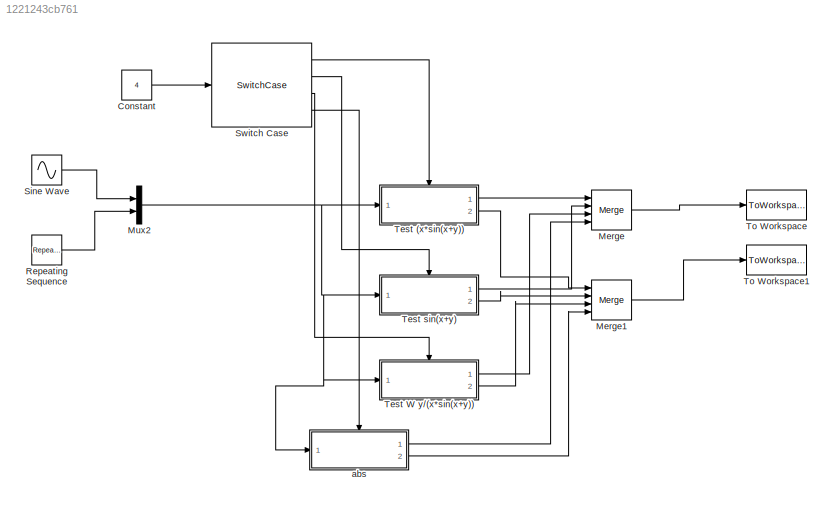
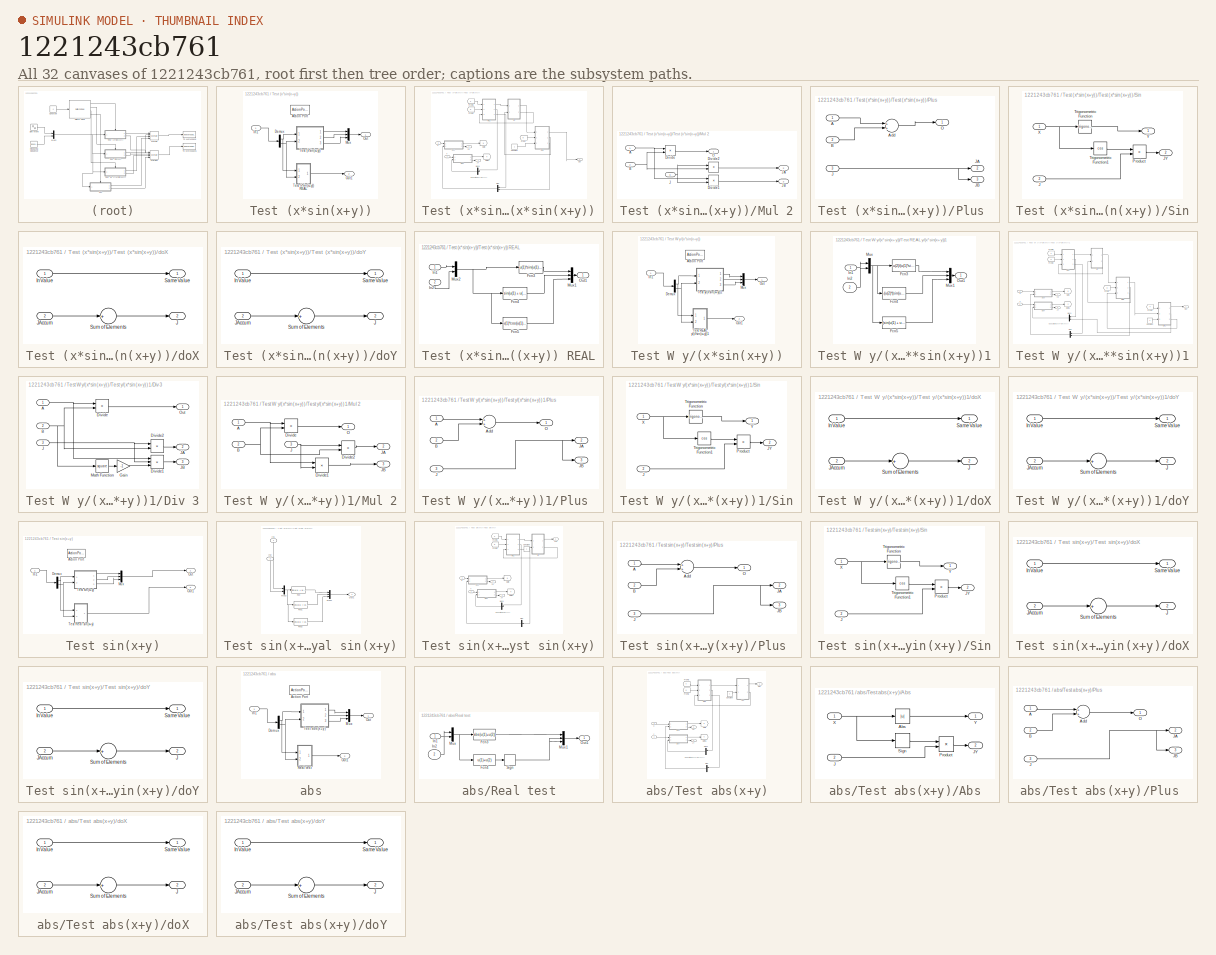
[diagram: thumbnail index - all 32 canvases of the model, root first then tree order]
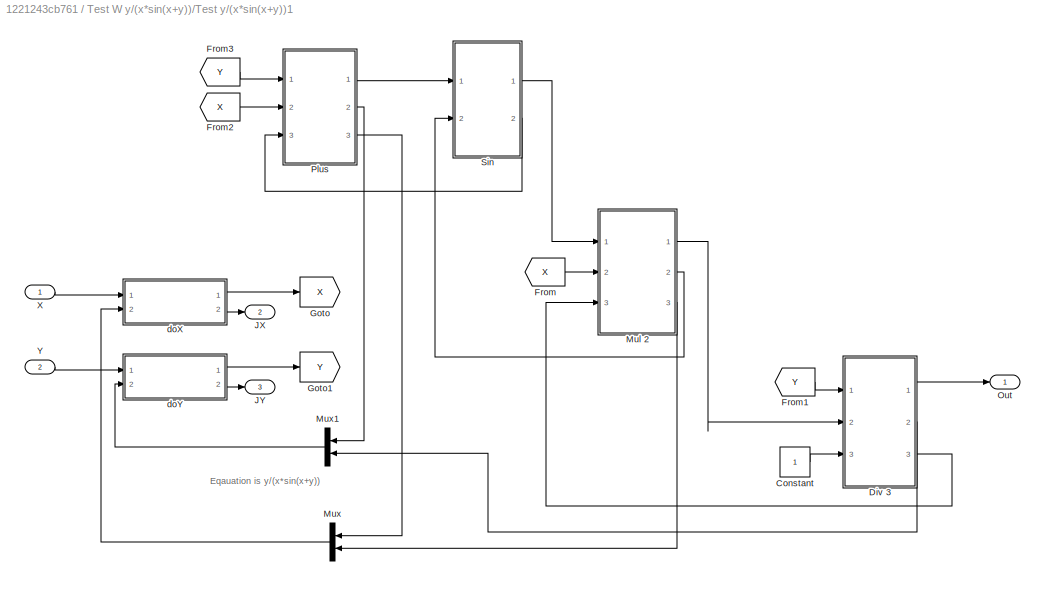
MODEL slx_1221243cb761
KIND model
CONFIG AbsTol = auto
CONFIG FixedStep = 0.01
CONFIG MaxStep = auto
CONFIG MinStep = auto
CONFIG RelTol = 1e-3
CONFIG SampleTimeConstraint = Unconstrained
CONFIG Solver = FixedStepDiscrete
CONFIG SolverMode = Auto
CONFIG SolverName = FixedStepDiscrete
CONFIG StartTime = 0.0
CONFIG StopTime = 10.0
BLOCK [Constant] Constant
  Value = 4
BLOCK [Merge] Merge
  Inputs = 4
  Ports = [4, 1]
BLOCK [Merge] Merge1
  Inputs = 4
  Ports = [4, 1]
BLOCK [Mux] Mux2
  DisplayOption = bar
  Inputs = 2
  Ports = [2, 1]
BLOCK [Reference] Repeating Sequence  REF=simulink/Sources/Repeating
Sequence
  Ports = [0, 1]
  SourceBlock = simulink/Sources/Repeating\nSequence
  SourceType = Repeating table
BLOCK [Sin] Sine Wave
  Ports = [0, 1]
  SampleTime = 0
BLOCK [SwitchCase] Switch Case
  CaseConditions = {1,2,3,4}
  Ports = [1, 4]
  ShowDefaultCase = off
BLOCK [SubSystem] Test (x*sin(x+y))
  Ports = [1, 2, 0, 0, 0, 0, 0, 1]
  RequestExecContextInheritance = off
  TreatAsAtomicUnit = on
  Variant = off
BLOCK [ActionPort] Test (x*sin(x+y))/Action Port
  ActionType = case
BLOCK [Demux] Test (x*sin(x+y))/Demux
  DisplayOption = bar
  Outputs = 2
  Ports = [1, 2]
BLOCK [Inport] Test (x*sin(x+y))/In1
  IconDisplay = Port number
BLOCK [Mux] Test (x*sin(x+y))/Mux
  DisplayOption = bar
  Inputs = 3
  Ports = [3, 1]
BLOCK [Outport] Test (x*sin(x+y))/Out
  IconDisplay = Port number
BLOCK [Outport] Test (x*sin(x+y))/Out1
  IconDisplay = Port number
  Port = 2
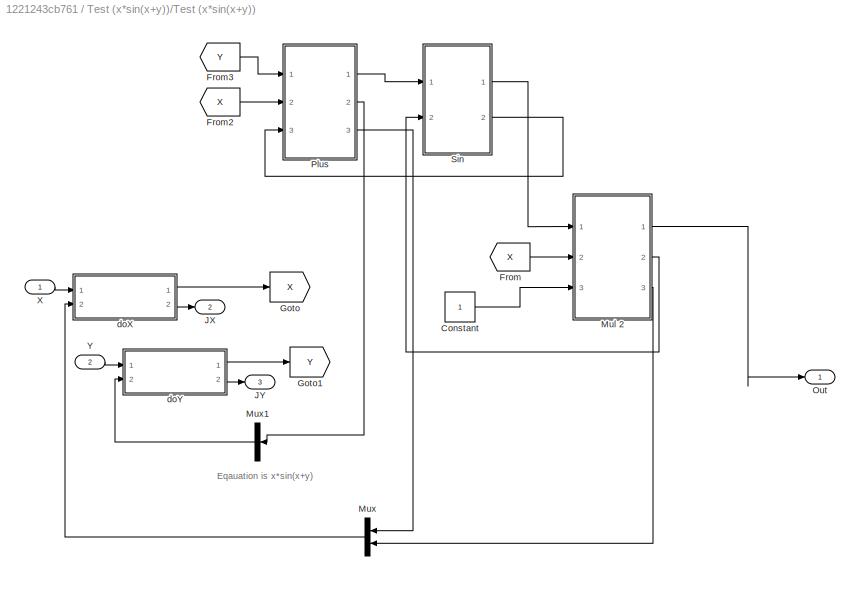
BLOCK [SubSystem] Test (x*sin(x+y))/Test (x*sin(x+y))
  Ports = [2, 3]
  RequestExecContextInheritance = off
  Variant = off
BLOCK [SubSystem] Test (x*sin(x+y))/Test (x*sin(x+y)) REAL
  Ports = [2, 1]
  RequestExecContextInheritance = off
  Variant = off
BLOCK [Fcn] Test (x*sin(x+y))/Test (x*sin(x+y)) REAL/Fcn3
  Expr = u(1)*sin(u(1) + u(2))
BLOCK [Fcn] Test (x*sin(x+y))/Test (x*sin(x+y)) REAL/Fcn4
  Expr = sin(u(1) + u(2)) + u(1)*cos(u(1) + u(2))
BLOCK [Fcn] Test (x*sin(x+y))/Test (x*sin(x+y)) REAL/Fcn5
  Expr = u(1)*cos(u(1) + u(2))
BLOCK [Inport] Test (x*sin(x+y))/Test (x*sin(x+y)) REAL/In1
  IconDisplay = Port number
BLOCK [Inport] Test (x*sin(x+y))/Test (x*sin(x+y)) REAL/In2
  IconDisplay = Port number
  Port = 2
BLOCK [Mux] Test (x*sin(x+y))/Test (x*sin(x+y)) REAL/Mux1
  DisplayOption = bar
  Inputs = 3
  Ports = [3, 1]
BLOCK [Mux] Test (x*sin(x+y))/Test (x*sin(x+y)) REAL/Mux2
  DisplayOption = bar
  Inputs = 2
  Ports = [2, 1]
BLOCK [Outport] Test (x*sin(x+y))/Test (x*sin(x+y)) REAL/Out1
  IconDisplay = Port number
BLOCK [Constant] Test (x*sin(x+y))/Test (x*sin(x+y))/Constant
BLOCK [From] Test (x*sin(x+y))/Test (x*sin(x+y))/From
  GotoTag = X
BLOCK [From] Test (x*sin(x+y))/Test (x*sin(x+y))/From2
  GotoTag = X
BLOCK [From] Test (x*sin(x+y))/Test (x*sin(x+y))/From3
  GotoTag = Y
BLOCK [Goto] Test (x*sin(x+y))/Test (x*sin(x+y))/Goto
  GotoTag = X
BLOCK [Goto] Test (x*sin(x+y))/Test (x*sin(x+y))/Goto1
  GotoTag = Y
BLOCK [Outport] Test (x*sin(x+y))/Test (x*sin(x+y))/JX
  IconDisplay = Port number
  Port = 2
BLOCK [Outport] Test (x*sin(x+y))/Test (x*sin(x+y))/JY
  IconDisplay = Port number
  Port = 3
BLOCK [SubSystem] Test (x*sin(x+y))/Test (x*sin(x+y))/Mul 2
  Ports = [3, 3]
  RequestExecContextInheritance = off
  Variant = off
BLOCK [Inport] Test (x*sin(x+y))/Test (x*sin(x+y))/Mul 2/A
  IconDisplay = Port number
BLOCK [Inport] Test (x*sin(x+y))/Test (x*sin(x+y))/Mul 2/B
  IconDisplay = Port number
  Port = 2
BLOCK [Product] Test (x*sin(x+y))/Test (x*sin(x+y))/Mul 2/Divide
  InputSameDT = off
  Inputs = **
  OutDataTypeStr = Inherit: Inherit via internal rule
  Ports = [2, 1]
  RndMeth = Floor
  SaturateOnIntegerOverflow = off
BLOCK [Product] Test (x*sin(x+y))/Test (x*sin(x+y))/Mul 2/Divide1
  InputSameDT = off
  Inputs = **
  OutDataTypeStr = Inherit: Inherit via internal rule
  Ports = [2, 1]
  RndMeth = Floor
  SaturateOnIntegerOverflow = off
BLOCK [Product] Test (x*sin(x+y))/Test (x*sin(x+y))/Mul 2/Divide2
  InputSameDT = off
  Inputs = **
  OutDataTypeStr = Inherit: Inherit via internal rule
  Ports = [2, 1]
  RndMeth = Floor
  SaturateOnIntegerOverflow = off
BLOCK [Inport] Test (x*sin(x+y))/Test (x*sin(x+y))/Mul 2/J
  IconDisplay = Port number
  Port = 3
BLOCK [Outport] Test (x*sin(x+y))/Test (x*sin(x+y))/Mul 2/JA
  IconDisplay = Port number
  Port = 2
BLOCK [Outport] Test (x*sin(x+y))/Test (x*sin(x+y))/Mul 2/JB
  IconDisplay = Port number
  Port = 3
BLOCK [Outport] Test (x*sin(x+y))/Test (x*sin(x+y))/Mul 2/O
  IconDisplay = Port number
BLOCK [Mux] Test (x*sin(x+y))/Test (x*sin(x+y))/Mux
  DisplayOption = bar
  Inputs = 2
  Ports = [2, 1]
BLOCK [Mux] Test (x*sin(x+y))/Test (x*sin(x+y))/Mux1
  DisplayOption = bar
  Inputs = 1
  Ports = [1, 1]
BLOCK [Outport] Test (x*sin(x+y))/Test (x*sin(x+y))/Out
  IconDisplay = Port number
BLOCK [SubSystem] Test (x*sin(x+y))/Test (x*sin(x+y))/Plus 
  Ports = [3, 3]
  RequestExecContextInheritance = off
  Variant = off
BLOCK [Inport] Test (x*sin(x+y))/Test (x*sin(x+y))/Plus /A
  IconDisplay = Port number
BLOCK [Sum] Test (x*sin(x+y))/Test (x*sin(x+y))/Plus /Add
  InputSameDT = off
  OutDataTypeStr = Inherit: Inherit via internal rule
  Ports = [2, 1]
  SaturateOnIntegerOverflow = off
BLOCK [Inport] Test (x*sin(x+y))/Test (x*sin(x+y))/Plus /B
  IconDisplay = Port number
  Port = 2
BLOCK [Inport] Test (x*sin(x+y))/Test (x*sin(x+y))/Plus /J
  IconDisplay = Port number
  Port = 3
BLOCK [Outport] Test (x*sin(x+y))/Test (x*sin(x+y))/Plus /JA
  IconDisplay = Port number
  Port = 2
BLOCK [Outport] Test (x*sin(x+y))/Test (x*sin(x+y))/Plus /JB
  IconDisplay = Port number
  Port = 3
BLOCK [Outport] Test (x*sin(x+y))/Test (x*sin(x+y))/Plus /O
  IconDisplay = Port number
BLOCK [SubSystem] Test (x*sin(x+y))/Test (x*sin(x+y))/Sin
  Ports = [2, 2]
  RequestExecContextInheritance = off
  Variant = off
BLOCK [Inport] Test (x*sin(x+y))/Test (x*sin(x+y))/Sin/J
  IconDisplay = Port number
  Port = 2
BLOCK [Outport] Test (x*sin(x+y))/Test (x*sin(x+y))/Sin/JY
  IconDisplay = Port number
  Port = 2
BLOCK [Product] Test (x*sin(x+y))/Test (x*sin(x+y))/Sin/Product
  InputSameDT = off
  OutDataTypeStr = Inherit: Inherit via internal rule
  Ports = [2, 1]
  RndMeth = Floor
  SaturateOnIntegerOverflow = off
BLOCK [Trigonometry] Test (x*sin(x+y))/Test (x*sin(x+y))/Sin/Trigonometric Function
  Ports = [1, 1]
BLOCK [Trigonometry] Test (x*sin(x+y))/Test (x*sin(x+y))/Sin/Trigonometric Function1
  Operator = cos
  Ports = [1, 1]
BLOCK [Inport] Test (x*sin(x+y))/Test (x*sin(x+y))/Sin/X
  IconDisplay = Port number
BLOCK [Outport] Test (x*sin(x+y))/Test (x*sin(x+y))/Sin/Y
  IconDisplay = Port number
BLOCK [Inport] Test (x*sin(x+y))/Test (x*sin(x+y))/X
  IconDisplay = Port number
BLOCK [Inport] Test (x*sin(x+y))/Test (x*sin(x+y))/Y
  IconDisplay = Port number
  Port = 2
BLOCK [SubSystem] Test (x*sin(x+y))/Test (x*sin(x+y))/doX
  Ports = [2, 2]
  RequestExecContextInheritance = off
  Variant = off
BLOCK [Inport] Test (x*sin(x+y))/Test (x*sin(x+y))/doX/InValue
  IconDisplay = Port number
BLOCK [Outport] Test (x*sin(x+y))/Test (x*sin(x+y))/doX/J
  IconDisplay = Port number
  Port = 2
BLOCK [Inport] Test (x*sin(x+y))/Test (x*sin(x+y))/doX/JAccum
  IconDisplay = Port number
  Port = 2
BLOCK [Outport] Test (x*sin(x+y))/Test (x*sin(x+y))/doX/SameValue
  IconDisplay = Port number
BLOCK [Sum] Test (x*sin(x+y))/Test (x*sin(x+y))/doX/Sum of Elements
  InputSameDT = off
  Inputs = +
  OutDataTypeStr = Inherit: Inherit via internal rule
  Ports = [1, 1]
  SaturateOnIntegerOverflow = off
BLOCK [SubSystem] Test (x*sin(x+y))/Test (x*sin(x+y))/doY
  Ports = [2, 2]
  RequestExecContextInheritance = off
  Variant = off
BLOCK [Inport] Test (x*sin(x+y))/Test (x*sin(x+y))/doY/InValue
  IconDisplay = Port number
BLOCK [Outport] Test (x*sin(x+y))/Test (x*sin(x+y))/doY/J
  IconDisplay = Port number
  Port = 2
BLOCK [Inport] Test (x*sin(x+y))/Test (x*sin(x+y))/doY/JAccum
  IconDisplay = Port number
  Port = 2
BLOCK [Outport] Test (x*sin(x+y))/Test (x*sin(x+y))/doY/SameValue
  IconDisplay = Port number
BLOCK [Sum] Test (x*sin(x+y))/Test (x*sin(x+y))/doY/Sum of Elements
  InputSameDT = off
  Inputs = +
  OutDataTypeStr = Inherit: Inherit via internal rule
  Ports = [1, 1]
  SaturateOnIntegerOverflow = off
BLOCK [SubSystem] Test W y//(x*sin(x+y))
  Ports = [1, 2, 0, 0, 0, 0, 0, 1]
  RequestExecContextInheritance = off
  TreatAsAtomicUnit = on
  Variant = off
BLOCK [ActionPort] Test W y//(x*sin(x+y))/Action Port
  ActionType = case
BLOCK [Demux] Test W y//(x*sin(x+y))/Demux
  DisplayOption = bar
  Outputs = 2
  Ports = [1, 2]
BLOCK [Inport] Test W y//(x*sin(x+y))/In1
  IconDisplay = Port number
BLOCK [Mux] Test W y//(x*sin(x+y))/Mux
  DisplayOption = bar
  Inputs = 3
  Ports = [3, 1]
BLOCK [Outport] Test W y//(x*sin(x+y))/Out
  IconDisplay = Port number
BLOCK [Outport] Test W y//(x*sin(x+y))/Out1
  IconDisplay = Port number
  Port = 2
BLOCK [SubSystem] Test W y//(x*sin(x+y))/Test REAL y//(x*sin(x+y))1
  Ports = [2, 1]
  RequestExecContextInheritance = off
  Variant = off
BLOCK [Fcn] Test W y//(x*sin(x+y))/Test REAL y//(x*sin(x+y))1/Fcn3
  Expr = u(2)/(u(1)*sin(u(1) + u(2)))
BLOCK [Fcn] Test W y//(x*sin(x+y))/Test REAL y//(x*sin(x+y))1/Fcn4
  Expr = -(u(2)*(sin(u(1) + u(2)) + u(1)*cos(u(1) + u(2))))/(u(1)^2*sin(u(1) + u(2))^2)
BLOCK [Fcn] Test W y//(x*sin(x+y))/Test REAL y//(x*sin(x+y))1/Fcn5
  Expr = (sin(u(1) + u(2)) - u(2)*cos(u(1) + u(2)))/(u(1)*sin(u(1) + u(2))^2)
BLOCK [Inport] Test W y//(x*sin(x+y))/Test REAL y//(x*sin(x+y))1/In1
  IconDisplay = Port number
BLOCK [Inport] Test W y//(x*sin(x+y))/Test REAL y//(x*sin(x+y))1/In2
  IconDisplay = Port number
  Port = 2
BLOCK [Mux] Test W y//(x*sin(x+y))/Test REAL y//(x*sin(x+y))1/Mux
  DisplayOption = bar
  Inputs = 2
  Ports = [2, 1]
BLOCK [Mux] Test W y//(x*sin(x+y))/Test REAL y//(x*sin(x+y))1/Mux1
  DisplayOption = bar
  Inputs = 3
  Ports = [3, 1]
BLOCK [Outport] Test W y//(x*sin(x+y))/Test REAL y//(x*sin(x+y))1/Out1
  IconDisplay = Port number
BLOCK [SubSystem] Test W y//(x*sin(x+y))/Test y//(x*sin(x+y))1
  Ports = [2, 3]
  RequestExecContextInheritance = off
  Variant = off
BLOCK [Constant] Test W y//(x*sin(x+y))/Test y//(x*sin(x+y))1/Constant
BLOCK [SubSystem] Test W y//(x*sin(x+y))/Test y//(x*sin(x+y))1/Div 3
  Ports = [3, 3]
  RequestExecContextInheritance = off
  Variant = off
BLOCK [Inport] Test W y//(x*sin(x+y))/Test y//(x*sin(x+y))1/Div 3/A
  IconDisplay = Port number
BLOCK [Inport] Test W y//(x*sin(x+y))/Test y//(x*sin(x+y))1/Div 3/B
  IconDisplay = Port number
  Port = 2
BLOCK [Product] Test W y//(x*sin(x+y))/Test y//(x*sin(x+y))1/Div 3/Divide
  InputSameDT = off
  Inputs = */
  OutDataTypeStr = Inherit: Inherit via internal rule
  Ports = [2, 1]
  RndMeth = Floor
  SaturateOnIntegerOverflow = off
BLOCK [Product] Test W y//(x*sin(x+y))/Test y//(x*sin(x+y))1/Div 3/Divide1
  InputSameDT = off
  Inputs = **/
  OutDataTypeStr = Inherit: Inherit via internal rule
  Ports = [3, 1]
  RndMeth = Floor
  SaturateOnIntegerOverflow = off
BLOCK [Product] Test W y//(x*sin(x+y))/Test y//(x*sin(x+y))1/Div 3/Divide2
  InputSameDT = off
  Inputs = */
  OutDataTypeStr = Inherit: Inherit via internal rule
  Ports = [2, 1]
  RndMeth = Floor
  SaturateOnIntegerOverflow = off
BLOCK [Gain] Test W y//(x*sin(x+y))/Test y//(x*sin(x+y))1/Div 3/Gain
  Gain = -1
  OutDataTypeStr = Inherit: Inherit via internal rule
  ParamDataTypeStr = Inherit: Inherit via internal rule
  SaturateOnIntegerOverflow = off
BLOCK [Inport] Test W y//(x*sin(x+y))/Test y//(x*sin(x+y))1/Div 3/J
  IconDisplay = Port number
  Port = 3
BLOCK [Outport] Test W y//(x*sin(x+y))/Test y//(x*sin(x+y))1/Div 3/JA
  IconDisplay = Port number
  Port = 2
BLOCK [Outport] Test W y//(x*sin(x+y))/Test y//(x*sin(x+y))1/Div 3/JB
  IconDisplay = Port number
  Port = 3
BLOCK [Math] Test W y//(x*sin(x+y))/Test y//(x*sin(x+y))1/Div 3/Math Function
  Operator = square
  Ports = [1, 1]
BLOCK [Outport] Test W y//(x*sin(x+y))/Test y//(x*sin(x+y))1/Div 3/Out
  IconDisplay = Port number
BLOCK [From] Test W y//(x*sin(x+y))/Test y//(x*sin(x+y))1/From
  GotoTag = X
BLOCK [From] Test W y//(x*sin(x+y))/Test y//(x*sin(x+y))1/From1
  GotoTag = Y
BLOCK [From] Test W y//(x*sin(x+y))/Test y//(x*sin(x+y))1/From2
  GotoTag = X
BLOCK [From] Test W y//(x*sin(x+y))/Test y//(x*sin(x+y))1/From3
  GotoTag = Y
BLOCK [Goto] Test W y//(x*sin(x+y))/Test y//(x*sin(x+y))1/Goto
  GotoTag = X
BLOCK [Goto] Test W y//(x*sin(x+y))/Test y//(x*sin(x+y))1/Goto1
  GotoTag = Y
BLOCK [Outport] Test W y//(x*sin(x+y))/Test y//(x*sin(x+y))1/JX
  IconDisplay = Port number
  Port = 2
BLOCK [Outport] Test W y//(x*sin(x+y))/Test y//(x*sin(x+y))1/JY
  IconDisplay = Port number
  Port = 3
BLOCK [SubSystem] Test W y//(x*sin(x+y))/Test y//(x*sin(x+y))1/Mul 2
  Ports = [3, 3]
  RequestExecContextInheritance = off
  Variant = off
BLOCK [Inport] Test W y//(x*sin(x+y))/Test y//(x*sin(x+y))1/Mul 2/A
  IconDisplay = Port number
BLOCK [Inport] Test W y//(x*sin(x+y))/Test y//(x*sin(x+y))1/Mul 2/B
  IconDisplay = Port number
  Port = 2
BLOCK [Product] Test W y//(x*sin(x+y))/Test y//(x*sin(x+y))1/Mul 2/Divide
  InputSameDT = off
  Inputs = **
  OutDataTypeStr = Inherit: Inherit via internal rule
  Ports = [2, 1]
  RndMeth = Floor
  SaturateOnIntegerOverflow = off
BLOCK [Product] Test W y//(x*sin(x+y))/Test y//(x*sin(x+y))1/Mul 2/Divide1
  InputSameDT = off
  Inputs = **
  OutDataTypeStr = Inherit: Inherit via internal rule
  Ports = [2, 1]
  RndMeth = Floor
  SaturateOnIntegerOverflow = off
BLOCK [Product] Test W y//(x*sin(x+y))/Test y//(x*sin(x+y))1/Mul 2/Divide2
  InputSameDT = off
  Inputs = **
  OutDataTypeStr = Inherit: Inherit via internal rule
  Ports = [2, 1]
  RndMeth = Floor
  SaturateOnIntegerOverflow = off
BLOCK [Inport] Test W y//(x*sin(x+y))/Test y//(x*sin(x+y))1/Mul 2/J
  IconDisplay = Port number
  Port = 3
BLOCK [Outport] Test W y//(x*sin(x+y))/Test y//(x*sin(x+y))1/Mul 2/JA
  IconDisplay = Port number
  Port = 2
BLOCK [Outport] Test W y//(x*sin(x+y))/Test y//(x*sin(x+y))1/Mul 2/JB
  IconDisplay = Port number
  Port = 3
BLOCK [Outport] Test W y//(x*sin(x+y))/Test y//(x*sin(x+y))1/Mul 2/O
  IconDisplay = Port number
BLOCK [Mux] Test W y//(x*sin(x+y))/Test y//(x*sin(x+y))1/Mux
  DisplayOption = bar
  Inputs = 2
  Ports = [2, 1]
BLOCK [Mux] Test W y//(x*sin(x+y))/Test y//(x*sin(x+y))1/Mux1
  DisplayOption = bar
  Inputs = 2
  Ports = [2, 1]
BLOCK [Outport] Test W y//(x*sin(x+y))/Test y//(x*sin(x+y))1/Out
  IconDisplay = Port number
BLOCK [SubSystem] Test W y//(x*sin(x+y))/Test y//(x*sin(x+y))1/Plus 
  Ports = [3, 3]
  RequestExecContextInheritance = off
  Variant = off
BLOCK [Inport] Test W y//(x*sin(x+y))/Test y//(x*sin(x+y))1/Plus /A
  IconDisplay = Port number
BLOCK [Sum] Test W y//(x*sin(x+y))/Test y//(x*sin(x+y))1/Plus /Add
  InputSameDT = off
  OutDataTypeStr = Inherit: Inherit via internal rule
  Ports = [2, 1]
  SaturateOnIntegerOverflow = off
BLOCK [Inport] Test W y//(x*sin(x+y))/Test y//(x*sin(x+y))1/Plus /B
  IconDisplay = Port number
  Port = 2
BLOCK [Inport] Test W y//(x*sin(x+y))/Test y//(x*sin(x+y))1/Plus /J
  IconDisplay = Port number
  Port = 3
BLOCK [Outport] Test W y//(x*sin(x+y))/Test y//(x*sin(x+y))1/Plus /JA
  IconDisplay = Port number
  Port = 2
BLOCK [Outport] Test W y//(x*sin(x+y))/Test y//(x*sin(x+y))1/Plus /JB
  IconDisplay = Port number
  Port = 3
BLOCK [Outport] Test W y//(x*sin(x+y))/Test y//(x*sin(x+y))1/Plus /O
  IconDisplay = Port number
BLOCK [SubSystem] Test W y//(x*sin(x+y))/Test y//(x*sin(x+y))1/Sin
  Ports = [2, 2]
  RequestExecContextInheritance = off
  Variant = off
BLOCK [Inport] Test W y//(x*sin(x+y))/Test y//(x*sin(x+y))1/Sin/J
  IconDisplay = Port number
  Port = 2
BLOCK [Outport] Test W y//(x*sin(x+y))/Test y//(x*sin(x+y))1/Sin/JY
  IconDisplay = Port number
  Port = 2
BLOCK [Product] Test W y//(x*sin(x+y))/Test y//(x*sin(x+y))1/Sin/Product
  InputSameDT = off
  OutDataTypeStr = Inherit: Inherit via internal rule
  Ports = [2, 1]
  RndMeth = Floor
  SaturateOnIntegerOverflow = off
BLOCK [Trigonometry] Test W y//(x*sin(x+y))/Test y//(x*sin(x+y))1/Sin/Trigonometric Function
  Ports = [1, 1]
BLOCK [Trigonometry] Test W y//(x*sin(x+y))/Test y//(x*sin(x+y))1/Sin/Trigonometric Function1
  Operator = cos
  Ports = [1, 1]
BLOCK [Inport] Test W y//(x*sin(x+y))/Test y//(x*sin(x+y))1/Sin/X
  IconDisplay = Port number
BLOCK [Outport] Test W y//(x*sin(x+y))/Test y//(x*sin(x+y))1/Sin/Y
  IconDisplay = Port number
BLOCK [Inport] Test W y//(x*sin(x+y))/Test y//(x*sin(x+y))1/X
  IconDisplay = Port number
BLOCK [Inport] Test W y//(x*sin(x+y))/Test y//(x*sin(x+y))1/Y
  IconDisplay = Port number
  Port = 2
BLOCK [SubSystem] Test W y//(x*sin(x+y))/Test y//(x*sin(x+y))1/doX
  Ports = [2, 2]
  RequestExecContextInheritance = off
  Variant = off
BLOCK [Inport] Test W y//(x*sin(x+y))/Test y//(x*sin(x+y))1/doX/InValue
  IconDisplay = Port number
BLOCK [Outport] Test W y//(x*sin(x+y))/Test y//(x*sin(x+y))1/doX/J
  IconDisplay = Port number
  Port = 2
BLOCK [Inport] Test W y//(x*sin(x+y))/Test y//(x*sin(x+y))1/doX/JAccum
  IconDisplay = Port number
  Port = 2
BLOCK [Outport] Test W y//(x*sin(x+y))/Test y//(x*sin(x+y))1/doX/SameValue
  IconDisplay = Port number
BLOCK [Sum] Test W y//(x*sin(x+y))/Test y//(x*sin(x+y))1/doX/Sum of Elements
  InputSameDT = off
  Inputs = +
  OutDataTypeStr = Inherit: Inherit via internal rule
  Ports = [1, 1]
  SaturateOnIntegerOverflow = off
BLOCK [SubSystem] Test W y//(x*sin(x+y))/Test y//(x*sin(x+y))1/doY
  Ports = [2, 2]
  RequestExecContextInheritance = off
  Variant = off
BLOCK [Inport] Test W y//(x*sin(x+y))/Test y//(x*sin(x+y))1/doY/InValue
  IconDisplay = Port number
BLOCK [Outport] Test W y//(x*sin(x+y))/Test y//(x*sin(x+y))1/doY/J
  IconDisplay = Port number
  Port = 2
BLOCK [Inport] Test W y//(x*sin(x+y))/Test y//(x*sin(x+y))1/doY/JAccum
  IconDisplay = Port number
  Port = 2
BLOCK [Outport] Test W y//(x*sin(x+y))/Test y//(x*sin(x+y))1/doY/SameValue
  IconDisplay = Port number
BLOCK [Sum] Test W y//(x*sin(x+y))/Test y//(x*sin(x+y))1/doY/Sum of Elements
  InputSameDT = off
  Inputs = +
  OutDataTypeStr = Inherit: Inherit via internal rule
  Ports = [1, 1]
  SaturateOnIntegerOverflow = off
BLOCK [SubSystem] Test sin(x+y)
  Ports = [1, 2, 0, 0, 0, 0, 0, 1]
  RequestExecContextInheritance = off
  TreatAsAtomicUnit = on
  Variant = off
BLOCK [ActionPort] Test sin(x+y)/Action Port
  ActionType = case
BLOCK [Demux] Test sin(x+y)/Demux
  DisplayOption = bar
  Outputs = 2
  Ports = [1, 2]
BLOCK [Inport] Test sin(x+y)/In1
  IconDisplay = Port number
BLOCK [Mux] Test sin(x+y)/Mux
  DisplayOption = bar
  Inputs = 3
  Ports = [3, 1]
BLOCK [Outport] Test sin(x+y)/Out
  IconDisplay = Port number
BLOCK [Outport] Test sin(x+y)/Out1
  IconDisplay = Port number
  Port = 2
BLOCK [SubSystem] Test sin(x+y)/Test Real sin(x+y)
  Ports = [2, 1]
  RequestExecContextInheritance = off
  Variant = off
BLOCK [Fcn] Test sin(x+y)/Test Real sin(x+y)/Fcn
  Expr = sin(u(1) + u(2))
BLOCK [Fcn] Test sin(x+y)/Test Real sin(x+y)/Fcn1
  Expr = cos(u(1) + u(2))
BLOCK [Fcn] Test sin(x+y)/Test Real sin(x+y)/Fcn2
  Expr = cos(u(1) + u(2))
BLOCK [Inport] Test sin(x+y)/Test Real sin(x+y)/In1
  IconDisplay = Port number
BLOCK [Inport] Test sin(x+y)/Test Real sin(x+y)/In2
  IconDisplay = Port number
  Port = 2
BLOCK [Mux] Test sin(x+y)/Test Real sin(x+y)/Mux1
  DisplayOption = bar
  Inputs = 3
  Ports = [3, 1]
BLOCK [Mux] Test sin(x+y)/Test Real sin(x+y)/Mux2
  DisplayOption = bar
  Inputs = 2
  Ports = [2, 1]
BLOCK [Outport] Test sin(x+y)/Test Real sin(x+y)/Out1
  IconDisplay = Port number
BLOCK [SubSystem] Test sin(x+y)/Test sin(x+y)
  Ports = [2, 3]
  RequestExecContextInheritance = off
  Variant = off
BLOCK [Constant] Test sin(x+y)/Test sin(x+y)/Constant
BLOCK [From] Test sin(x+y)/Test sin(x+y)/From2
  GotoTag = X
BLOCK [From] Test sin(x+y)/Test sin(x+y)/From3
  GotoTag = Y
BLOCK [Goto] Test sin(x+y)/Test sin(x+y)/Goto
  GotoTag = X
BLOCK [Goto] Test sin(x+y)/Test sin(x+y)/Goto1
  GotoTag = Y
BLOCK [Outport] Test sin(x+y)/Test sin(x+y)/JX
  IconDisplay = Port number
  Port = 2
BLOCK [Outport] Test sin(x+y)/Test sin(x+y)/JX1
  IconDisplay = Port number
BLOCK [Outport] Test sin(x+y)/Test sin(x+y)/JY
  IconDisplay = Port number
  Port = 3
BLOCK [Mux] Test sin(x+y)/Test sin(x+y)/Mux
  DisplayOption = bar
  Inputs = 1
  Ports = [1, 1]
BLOCK [Mux] Test sin(x+y)/Test sin(x+y)/Mux1
  DisplayOption = bar
  Inputs = 1
  Ports = [1, 1]
BLOCK [SubSystem] Test sin(x+y)/Test sin(x+y)/Plus 
  Ports = [3, 3]
  RequestExecContextInheritance = off
  Variant = off
BLOCK [Inport] Test sin(x+y)/Test sin(x+y)/Plus /A
  IconDisplay = Port number
BLOCK [Sum] Test sin(x+y)/Test sin(x+y)/Plus /Add
  InputSameDT = off
  OutDataTypeStr = Inherit: Inherit via internal rule
  Ports = [2, 1]
  SaturateOnIntegerOverflow = off
BLOCK [Inport] Test sin(x+y)/Test sin(x+y)/Plus /B
  IconDisplay = Port number
  Port = 2
BLOCK [Inport] Test sin(x+y)/Test sin(x+y)/Plus /J
  IconDisplay = Port number
  Port = 3
BLOCK [Outport] Test sin(x+y)/Test sin(x+y)/Plus /JA
  IconDisplay = Port number
  Port = 2
BLOCK [Outport] Test sin(x+y)/Test sin(x+y)/Plus /JB
  IconDisplay = Port number
  Port = 3
BLOCK [Outport] Test sin(x+y)/Test sin(x+y)/Plus /O
  IconDisplay = Port number
BLOCK [SubSystem] Test sin(x+y)/Test sin(x+y)/Sin
  Ports = [2, 2]
  RequestExecContextInheritance = off
  Variant = off
BLOCK [Inport] Test sin(x+y)/Test sin(x+y)/Sin/J
  IconDisplay = Port number
  Port = 2
BLOCK [Outport] Test sin(x+y)/Test sin(x+y)/Sin/JY
  IconDisplay = Port number
  Port = 2
BLOCK [Product] Test sin(x+y)/Test sin(x+y)/Sin/Product
  InputSameDT = off
  OutDataTypeStr = Inherit: Inherit via internal rule
  Ports = [2, 1]
  RndMeth = Floor
  SaturateOnIntegerOverflow = off
BLOCK [Trigonometry] Test sin(x+y)/Test sin(x+y)/Sin/Trigonometric Function
  Ports = [1, 1]
BLOCK [Trigonometry] Test sin(x+y)/Test sin(x+y)/Sin/Trigonometric Function1
  Operator = cos
  Ports = [1, 1]
BLOCK [Inport] Test sin(x+y)/Test sin(x+y)/Sin/X
  IconDisplay = Port number
BLOCK [Outport] Test sin(x+y)/Test sin(x+y)/Sin/Y
  IconDisplay = Port number
BLOCK [Inport] Test sin(x+y)/Test sin(x+y)/X
  IconDisplay = Port number
BLOCK [Inport] Test sin(x+y)/Test sin(x+y)/Y
  IconDisplay = Port number
  Port = 2
BLOCK [SubSystem] Test sin(x+y)/Test sin(x+y)/doX
  Ports = [2, 2]
  RequestExecContextInheritance = off
  Variant = off
BLOCK [Inport] Test sin(x+y)/Test sin(x+y)/doX/InValue
  IconDisplay = Port number
BLOCK [Outport] Test sin(x+y)/Test sin(x+y)/doX/J
  IconDisplay = Port number
  Port = 2
BLOCK [Inport] Test sin(x+y)/Test sin(x+y)/doX/JAccum
  IconDisplay = Port number
  Port = 2
BLOCK [Outport] Test sin(x+y)/Test sin(x+y)/doX/SameValue
  IconDisplay = Port number
BLOCK [Sum] Test sin(x+y)/Test sin(x+y)/doX/Sum of Elements
  InputSameDT = off
  Inputs = +
  OutDataTypeStr = Inherit: Inherit via internal rule
  Ports = [1, 1]
  SaturateOnIntegerOverflow = off
BLOCK [SubSystem] Test sin(x+y)/Test sin(x+y)/doY
  Ports = [2, 2]
  RequestExecContextInheritance = off
  Variant = off
BLOCK [Inport] Test sin(x+y)/Test sin(x+y)/doY/InValue
  IconDisplay = Port number
BLOCK [Outport] Test sin(x+y)/Test sin(x+y)/doY/J
  IconDisplay = Port number
  Port = 2
BLOCK [Inport] Test sin(x+y)/Test sin(x+y)/doY/JAccum
  IconDisplay = Port number
  Port = 2
BLOCK [Outport] Test sin(x+y)/Test sin(x+y)/doY/SameValue
  IconDisplay = Port number
BLOCK [Sum] Test sin(x+y)/Test sin(x+y)/doY/Sum of Elements
  InputSameDT = off
  Inputs = +
  OutDataTypeStr = Inherit: Inherit via internal rule
  Ports = [1, 1]
  SaturateOnIntegerOverflow = off
BLOCK [ToWorkspace] To Workspace
  FixptAsFi = on
  MaxDataPoints = inf
  Ports = [1]
  SampleTime = -1
  Save2DSignal = 3-D array (concatenate along third dimension)
  SaveFormat = Timeseries
  VariableName = simout
BLOCK [ToWorkspace] To Workspace1
  FixptAsFi = on
  MaxDataPoints = inf
  Ports = [1]
  SampleTime = -1
  Save2DSignal = 3-D array (concatenate along third dimension)
  SaveFormat = Timeseries
  VariableName = simout1
BLOCK [SubSystem] abs
  Ports = [1, 2, 0, 0, 0, 0, 0, 1]
  RequestExecContextInheritance = off
  TreatAsAtomicUnit = on
  Variant = off
BLOCK [ActionPort] abs/Action Port
  ActionType = case
BLOCK [Demux] abs/Demux
  DisplayOption = bar
  Outputs = 2
  Ports = [1, 2]
BLOCK [Inport] abs/In1
  IconDisplay = Port number
BLOCK [Mux] abs/Mux
  DisplayOption = bar
  Inputs = 3
  Ports = [3, 1]
BLOCK [Outport] abs/Out
  IconDisplay = Port number
BLOCK [Outport] abs/Out1
  IconDisplay = Port number
  Port = 2
BLOCK [SubSystem] abs/Real test
  Ports = [2, 1]
  RequestExecContextInheritance = off
  Variant = off
BLOCK [Fcn] abs/Real test/Fcn3
  Expr = abs(u(1)+u(2))
BLOCK [Fcn] abs/Real test/Fcn4
  Expr = u(1)+u(2)
BLOCK [Inport] abs/Real test/In1
  IconDisplay = Port number
BLOCK [Inport] abs/Real test/In2
  IconDisplay = Port number
  Port = 2
BLOCK [Mux] abs/Real test/Mux
  DisplayOption = bar
  Inputs = 2
  Ports = [2, 1]
BLOCK [Mux] abs/Real test/Mux1
  DisplayOption = bar
  Inputs = 3
  Ports = [3, 1]
BLOCK [Outport] abs/Real test/Out1
  IconDisplay = Port number
BLOCK [Signum] abs/Real test/Sign
BLOCK [SubSystem] abs/Test abs(x+y)
  Ports = [2, 3]
  RequestExecContextInheritance = off
  Variant = off
BLOCK [SubSystem] abs/Test abs(x+y)/Abs
  Ports = [2, 2]
  RequestExecContextInheritance = off
  Variant = off
BLOCK [Abs] abs/Test abs(x+y)/Abs/Abs
  SaturateOnIntegerOverflow = off
BLOCK [Inport] abs/Test abs(x+y)/Abs/J
  IconDisplay = Port number
  Port = 2
BLOCK [Outport] abs/Test abs(x+y)/Abs/JY
  IconDisplay = Port number
  Port = 2
BLOCK [Product] abs/Test abs(x+y)/Abs/Product
  InputSameDT = off
  OutDataTypeStr = Inherit: Inherit via internal rule
  Ports = [2, 1]
  RndMeth = Floor
  SaturateOnIntegerOverflow = off
BLOCK [Signum] abs/Test abs(x+y)/Abs/Sign
BLOCK [Inport] abs/Test abs(x+y)/Abs/X
  IconDisplay = Port number
BLOCK [Outport] abs/Test abs(x+y)/Abs/Y
  IconDisplay = Port number
BLOCK [Constant] abs/Test abs(x+y)/Constant
BLOCK [From] abs/Test abs(x+y)/From2
  GotoTag = X
BLOCK [From] abs/Test abs(x+y)/From3
  GotoTag = Y
BLOCK [Goto] abs/Test abs(x+y)/Goto
  GotoTag = X
BLOCK [Goto] abs/Test abs(x+y)/Goto1
  GotoTag = Y
BLOCK [Outport] abs/Test abs(x+y)/JX
  IconDisplay = Port number
  Port = 2
BLOCK [Outport] abs/Test abs(x+y)/JY
  IconDisplay = Port number
  Port = 3
BLOCK [Mux] abs/Test abs(x+y)/Mux
  DisplayOption = bar
  Inputs = 2
  Ports = [2, 1]
BLOCK [Mux] abs/Test abs(x+y)/Mux1
  DisplayOption = bar
  Inputs = 2
  Ports = [2, 1]
BLOCK [Outport] abs/Test abs(x+y)/Out
  IconDisplay = Port number
BLOCK [SubSystem] abs/Test abs(x+y)/Plus 
  Ports = [3, 3]
  RequestExecContextInheritance = off
  Variant = off
BLOCK [Inport] abs/Test abs(x+y)/Plus /A
  IconDisplay = Port number
BLOCK [Sum] abs/Test abs(x+y)/Plus /Add
  InputSameDT = off
  OutDataTypeStr = Inherit: Inherit via internal rule
  Ports = [2, 1]
  SaturateOnIntegerOverflow = off
BLOCK [Inport] abs/Test abs(x+y)/Plus /B
  IconDisplay = Port number
  Port = 2
BLOCK [Inport] abs/Test abs(x+y)/Plus /J
  IconDisplay = Port number
  Port = 3
BLOCK [Outport] abs/Test abs(x+y)/Plus /JA
  IconDisplay = Port number
  Port = 2
BLOCK [Outport] abs/Test abs(x+y)/Plus /JB
  IconDisplay = Port number
  Port = 3
BLOCK [Outport] abs/Test abs(x+y)/Plus /O
  IconDisplay = Port number
BLOCK [Inport] abs/Test abs(x+y)/X
  IconDisplay = Port number
BLOCK [Inport] abs/Test abs(x+y)/Y
  IconDisplay = Port number
  Port = 2
BLOCK [SubSystem] abs/Test abs(x+y)/doX
  Ports = [2, 2]
  RequestExecContextInheritance = off
  Variant = off
BLOCK [Inport] abs/Test abs(x+y)/doX/InValue
  IconDisplay = Port number
BLOCK [Outport] abs/Test abs(x+y)/doX/J
  IconDisplay = Port number
  Port = 2
BLOCK [Inport] abs/Test abs(x+y)/doX/JAccum
  IconDisplay = Port number
  Port = 2
BLOCK [Outport] abs/Test abs(x+y)/doX/SameValue
  IconDisplay = Port number
BLOCK [Sum] abs/Test abs(x+y)/doX/Sum of Elements
  InputSameDT = off
  Inputs = +
  OutDataTypeStr = Inherit: Inherit via internal rule
  Ports = [1, 1]
  SaturateOnIntegerOverflow = off
BLOCK [SubSystem] abs/Test abs(x+y)/doY
  Ports = [2, 2]
  RequestExecContextInheritance = off
  Variant = off
BLOCK [Inport] abs/Test abs(x+y)/doY/InValue
  IconDisplay = Port number
BLOCK [Outport] abs/Test abs(x+y)/doY/J
  IconDisplay = Port number
  Port = 2
BLOCK [Inport] abs/Test abs(x+y)/doY/JAccum
  IconDisplay = Port number
  Port = 2
BLOCK [Outport] abs/Test abs(x+y)/doY/SameValue
  IconDisplay = Port number
BLOCK [Sum] abs/Test abs(x+y)/doY/Sum of Elements
  InputSameDT = off
  Inputs = +
  OutDataTypeStr = Inherit: Inherit via internal rule
  Ports = [1, 1]
  SaturateOnIntegerOverflow = off
ANNOTATION Test (x*sin(x+y))/Test (x*sin(x+y)): Eqauation is x*sin(x+y)
ANNOTATION Test W y//(x*sin(x+y))/Test y//(x*sin(x+y))1: Eqauation is y/(x*sin(x+y))
ANNOTATION Test sin(x+y)/Test sin(x+y): Eqauation is sin(x+y)
ANNOTATION abs/Test abs(x+y): Eqauation is y/(x*sin(x+y))
LINE Constant:1 -> Switch Case:1
LINE Merge1:1 -> To Workspace1:1
LINE Merge:1 -> To Workspace:1
NET Mux2:1 -> Test (x*sin(x+y)):1, Test W y//(x*sin(x+y)):1, Test sin(x+y):1, abs:1
LINE Repeating Sequence:1 -> Mux2:2
LINE Sine Wave:1 -> Mux2:1
LINE Switch Case:1 -> Test (x*sin(x+y)):ifaction
LINE Switch Case:2 -> Test sin(x+y):ifaction
LINE Switch Case:3 -> Test W y//(x*sin(x+y)):ifaction
LINE Switch Case:4 -> abs:ifaction
NET Test (x*sin(x+y))/Demux:1 -> Test (x*sin(x+y))/Test (x*sin(x+y)) REAL:1, Test (x*sin(x+y))/Test (x*sin(x+y)):1
NET Test (x*sin(x+y))/Demux:2 -> Test (x*sin(x+y))/Test (x*sin(x+y)) REAL:2, Test (x*sin(x+y))/Test (x*sin(x+y)):2
LINE Test (x*sin(x+y))/In1:1 -> Test (x*sin(x+y))/Demux:1
LINE Test (x*sin(x+y))/Mux:1 -> Test (x*sin(x+y))/Out:1
LINE Test (x*sin(x+y))/Test (x*sin(x+y)) REAL/Fcn3:1 -> Test (x*sin(x+y))/Test (x*sin(x+y)) REAL/Mux1:1
LINE Test (x*sin(x+y))/Test (x*sin(x+y)) REAL/Fcn4:1 -> Test (x*sin(x+y))/Test (x*sin(x+y)) REAL/Mux1:2
LINE Test (x*sin(x+y))/Test (x*sin(x+y)) REAL/Fcn5:1 -> Test (x*sin(x+y))/Test (x*sin(x+y)) REAL/Mux1:3
LINE Test (x*sin(x+y))/Test (x*sin(x+y)) REAL/In1:1 -> Test (x*sin(x+y))/Test (x*sin(x+y)) REAL/Mux2:1
LINE Test (x*sin(x+y))/Test (x*sin(x+y)) REAL/In2:1 -> Test (x*sin(x+y))/Test (x*sin(x+y)) REAL/Mux2:2
LINE Test (x*sin(x+y))/Test (x*sin(x+y)) REAL/Mux1:1 -> Test (x*sin(x+y))/Test (x*sin(x+y)) REAL/Out1:1
NET Test (x*sin(x+y))/Test (x*sin(x+y)) REAL/Mux2:1 -> Test (x*sin(x+y))/Test (x*sin(x+y)) REAL/Fcn3:1, Test (x*sin(x+y))/Test (x*sin(x+y)) REAL/Fcn4:1, Test (x*sin(x+y))/Test (x*sin(x+y)) REAL/Fcn5:1
LINE Test (x*sin(x+y))/Test (x*sin(x+y)) REAL:1 -> Test (x*sin(x+y))/Out1:1
LINE Test (x*sin(x+y))/Test (x*sin(x+y))/Constant:1 -> Test (x*sin(x+y))/Test (x*sin(x+y))/Mul 2:3
LINE Test (x*sin(x+y))/Test (x*sin(x+y))/From2:1 -> Test (x*sin(x+y))/Test (x*sin(x+y))/Plus :2
LINE Test (x*sin(x+y))/Test (x*sin(x+y))/From3:1 -> Test (x*sin(x+y))/Test (x*sin(x+y))/Plus :1
LINE Test (x*sin(x+y))/Test (x*sin(x+y))/From:1 -> Test (x*sin(x+y))/Test (x*sin(x+y))/Mul 2:2
NET Test (x*sin(x+y))/Test (x*sin(x+y))/Mul 2/A:1 -> Test (x*sin(x+y))/Test (x*sin(x+y))/Mul 2/Divide1:1, Test (x*sin(x+y))/Test (x*sin(x+y))/Mul 2/Divide:1
NET Test (x*sin(x+y))/Test (x*sin(x+y))/Mul 2/B:1 -> Test (x*sin(x+y))/Test (x*sin(x+y))/Mul 2/Divide2:2, Test (x*sin(x+y))/Test (x*sin(x+y))/Mul 2/Divide:2
LINE Test (x*sin(x+y))/Test (x*sin(x+y))/Mul 2/Divide1:1 -> Test (x*sin(x+y))/Test (x*sin(x+y))/Mul 2/JB:1
LINE Test (x*sin(x+y))/Test (x*sin(x+y))/Mul 2/Divide2:1 -> Test (x*sin(x+y))/Test (x*sin(x+y))/Mul 2/JA:1
LINE Test (x*sin(x+y))/Test (x*sin(x+y))/Mul 2/Divide:1 -> Test (x*sin(x+y))/Test (x*sin(x+y))/Mul 2/O:1
NET Test (x*sin(x+y))/Test (x*sin(x+y))/Mul 2/J:1 -> Test (x*sin(x+y))/Test (x*sin(x+y))/Mul 2/Divide1:2, Test (x*sin(x+y))/Test (x*sin(x+y))/Mul 2/Divide2:1
LINE Test (x*sin(x+y))/Test (x*sin(x+y))/Mul 2:1 -> Test (x*sin(x+y))/Test (x*sin(x+y))/Out:1
LINE Test (x*sin(x+y))/Test (x*sin(x+y))/Mul 2:2 -> Test (x*sin(x+y))/Test (x*sin(x+y))/Sin:2
LINE Test (x*sin(x+y))/Test (x*sin(x+y))/Mul 2:3 -> Test (x*sin(x+y))/Test (x*sin(x+y))/Mux:2
LINE Test (x*sin(x+y))/Test (x*sin(x+y))/Mux1:1 -> Test (x*sin(x+y))/Test (x*sin(x+y))/doY:2
LINE Test (x*sin(x+y))/Test (x*sin(x+y))/Mux:1 -> Test (x*sin(x+y))/Test (x*sin(x+y))/doX:2
LINE Test (x*sin(x+y))/Test (x*sin(x+y))/Plus /A:1 -> Test (x*sin(x+y))/Test (x*sin(x+y))/Plus /Add:1
LINE Test (x*sin(x+y))/Test (x*sin(x+y))/Plus /Add:1 -> Test (x*sin(x+y))/Test (x*sin(x+y))/Plus /O:1
LINE Test (x*sin(x+y))/Test (x*sin(x+y))/Plus /B:1 -> Test (x*sin(x+y))/Test (x*sin(x+y))/Plus /Add:2
NET Test (x*sin(x+y))/Test (x*sin(x+y))/Plus /J:1 -> Test (x*sin(x+y))/Test (x*sin(x+y))/Plus /JA:1, Test (x*sin(x+y))/Test (x*sin(x+y))/Plus /JB:1
LINE Test (x*sin(x+y))/Test (x*sin(x+y))/Plus :1 -> Test (x*sin(x+y))/Test (x*sin(x+y))/Sin:1
LINE Test (x*sin(x+y))/Test (x*sin(x+y))/Plus :2 -> Test (x*sin(x+y))/Test (x*sin(x+y))/Mux1:1
LINE Test (x*sin(x+y))/Test (x*sin(x+y))/Plus :3 -> Test (x*sin(x+y))/Test (x*sin(x+y))/Mux:1
LINE Test (x*sin(x+y))/Test (x*sin(x+y))/Sin/J:1 -> Test (x*sin(x+y))/Test (x*sin(x+y))/Sin/Product:2
LINE Test (x*sin(x+y))/Test (x*sin(x+y))/Sin/Product:1 -> Test (x*sin(x+y))/Test (x*sin(x+y))/Sin/JY:1
LINE Test (x*sin(x+y))/Test (x*sin(x+y))/Sin/Trigonometric Function1:1 -> Test (x*sin(x+y))/Test (x*sin(x+y))/Sin/Product:1
LINE Test (x*sin(x+y))/Test (x*sin(x+y))/Sin/Trigonometric Function:1 -> Test (x*sin(x+y))/Test (x*sin(x+y))/Sin/Y:1
NET Test (x*sin(x+y))/Test (x*sin(x+y))/Sin/X:1 -> Test (x*sin(x+y))/Test (x*sin(x+y))/Sin/Trigonometric Function1:1, Test (x*sin(x+y))/Test (x*sin(x+y))/Sin/Trigonometric Function:1
LINE Test (x*sin(x+y))/Test (x*sin(x+y))/Sin:1 -> Test (x*sin(x+y))/Test (x*sin(x+y))/Mul 2:1
LINE Test (x*sin(x+y))/Test (x*sin(x+y))/Sin:2 -> Test (x*sin(x+y))/Test (x*sin(x+y))/Plus :3
LINE Test (x*sin(x+y))/Test (x*sin(x+y))/X:1 -> Test (x*sin(x+y))/Test (x*sin(x+y))/doX:1
LINE Test (x*sin(x+y))/Test (x*sin(x+y))/Y:1 -> Test (x*sin(x+y))/Test (x*sin(x+y))/doY:1
LINE Test (x*sin(x+y))/Test (x*sin(x+y))/doX/InValue:1 -> Test (x*sin(x+y))/Test (x*sin(x+y))/doX/SameValue:1
LINE Test (x*sin(x+y))/Test (x*sin(x+y))/doX/JAccum:1 -> Test (x*sin(x+y))/Test (x*sin(x+y))/doX/Sum of Elements:1
LINE Test (x*sin(x+y))/Test (x*sin(x+y))/doX/Sum of Elements:1 -> Test (x*sin(x+y))/Test (x*sin(x+y))/doX/J:1
LINE Test (x*sin(x+y))/Test (x*sin(x+y))/doX:1 -> Test (x*sin(x+y))/Test (x*sin(x+y))/Goto:1
LINE Test (x*sin(x+y))/Test (x*sin(x+y))/doX:2 -> Test (x*sin(x+y))/Test (x*sin(x+y))/JX:1
LINE Test (x*sin(x+y))/Test (x*sin(x+y))/doY/InValue:1 -> Test (x*sin(x+y))/Test (x*sin(x+y))/doY/SameValue:1
LINE Test (x*sin(x+y))/Test (x*sin(x+y))/doY/JAccum:1 -> Test (x*sin(x+y))/Test (x*sin(x+y))/doY/Sum of Elements:1
LINE Test (x*sin(x+y))/Test (x*sin(x+y))/doY/Sum of Elements:1 -> Test (x*sin(x+y))/Test (x*sin(x+y))/doY/J:1
LINE Test (x*sin(x+y))/Test (x*sin(x+y))/doY:1 -> Test (x*sin(x+y))/Test (x*sin(x+y))/Goto1:1
LINE Test (x*sin(x+y))/Test (x*sin(x+y))/doY:2 -> Test (x*sin(x+y))/Test (x*sin(x+y))/JY:1
LINE Test (x*sin(x+y))/Test (x*sin(x+y)):1 -> Test (x*sin(x+y))/Mux:1
LINE Test (x*sin(x+y))/Test (x*sin(x+y)):2 -> Test (x*sin(x+y))/Mux:2
LINE Test (x*sin(x+y))/Test (x*sin(x+y)):3 -> Test (x*sin(x+y))/Mux:3
LINE Test (x*sin(x+y)):1 -> Merge:1
LINE Test (x*sin(x+y)):2 -> Merge1:1
NET Test W y//(x*sin(x+y))/Demux:1 -> Test W y//(x*sin(x+y))/Test REAL y//(x*sin(x+y))1:1, Test W y//(x*sin(x+y))/Test y//(x*sin(x+y))1:1
NET Test W y//(x*sin(x+y))/Demux:2 -> Test W y//(x*sin(x+y))/Test REAL y//(x*sin(x+y))1:2, Test W y//(x*sin(x+y))/Test y//(x*sin(x+y))1:2
LINE Test W y//(x*sin(x+y))/In1:1 -> Test W y//(x*sin(x+y))/Demux:1
LINE Test W y//(x*sin(x+y))/Mux:1 -> Test W y//(x*sin(x+y))/Out:1
LINE Test W y//(x*sin(x+y))/Test REAL y//(x*sin(x+y))1/Fcn3:1 -> Test W y//(x*sin(x+y))/Test REAL y//(x*sin(x+y))1/Mux1:1
LINE Test W y//(x*sin(x+y))/Test REAL y//(x*sin(x+y))1/Fcn4:1 -> Test W y//(x*sin(x+y))/Test REAL y//(x*sin(x+y))1/Mux1:2
LINE Test W y//(x*sin(x+y))/Test REAL y//(x*sin(x+y))1/Fcn5:1 -> Test W y//(x*sin(x+y))/Test REAL y//(x*sin(x+y))1/Mux1:3
LINE Test W y//(x*sin(x+y))/Test REAL y//(x*sin(x+y))1/In1:1 -> Test W y//(x*sin(x+y))/Test REAL y//(x*sin(x+y))1/Mux:1
LINE Test W y//(x*sin(x+y))/Test REAL y//(x*sin(x+y))1/In2:1 -> Test W y//(x*sin(x+y))/Test REAL y//(x*sin(x+y))1/Mux:2
LINE Test W y//(x*sin(x+y))/Test REAL y//(x*sin(x+y))1/Mux1:1 -> Test W y//(x*sin(x+y))/Test REAL y//(x*sin(x+y))1/Out1:1
NET Test W y//(x*sin(x+y))/Test REAL y//(x*sin(x+y))1/Mux:1 -> Test W y//(x*sin(x+y))/Test REAL y//(x*sin(x+y))1/Fcn3:1, Test W y//(x*sin(x+y))/Test REAL y//(x*sin(x+y))1/Fcn4:1, Test W y//(x*sin(x+y))/Test REAL y//(x*sin(x+y))1/Fcn5:1
LINE Test W y//(x*sin(x+y))/Test REAL y//(x*sin(x+y))1:1 -> Test W y//(x*sin(x+y))/Out1:1
LINE Test W y//(x*sin(x+y))/Test y//(x*sin(x+y))1/Constant:1 -> Test W y//(x*sin(x+y))/Test y//(x*sin(x+y))1/Div 3:3
NET Test W y//(x*sin(x+y))/Test y//(x*sin(x+y))1/Div 3/A:1 -> Test W y//(x*sin(x+y))/Test y//(x*sin(x+y))1/Div 3/Divide1:1, Test W y//(x*sin(x+y))/Test y//(x*sin(x+y))1/Div 3/Divide:1
NET Test W y//(x*sin(x+y))/Test y//(x*sin(x+y))1/Div 3/B:1 -> Test W y//(x*sin(x+y))/Test y//(x*sin(x+y))1/Div 3/Divide2:2, Test W y//(x*sin(x+y))/Test y//(x*sin(x+y))1/Div 3/Divide:2, Test W y//(x*sin(x+y))/Test y//(x*sin(x+y))1/Div 3/Math Function:1
LINE Test W y//(x*sin(x+y))/Test y//(x*sin(x+y))1/Div 3/Divide1:1 -> Test W y//(x*sin(x+y))/Test y//(x*sin(x+y))1/Div 3/JB:1
LINE Test W y//(x*sin(x+y))/Test y//(x*sin(x+y))1/Div 3/Divide2:1 -> Test W y//(x*sin(x+y))/Test y//(x*sin(x+y))1/Div 3/JA:1
LINE Test W y//(x*sin(x+y))/Test y//(x*sin(x+y))1/Div 3/Divide:1 -> Test W y//(x*sin(x+y))/Test y//(x*sin(x+y))1/Div 3/Out:1
LINE Test W y//(x*sin(x+y))/Test y//(x*sin(x+y))1/Div 3/Gain:1 -> Test W y//(x*sin(x+y))/Test y//(x*sin(x+y))1/Div 3/Divide1:3
NET Test W y//(x*sin(x+y))/Test y//(x*sin(x+y))1/Div 3/J:1 -> Test W y//(x*sin(x+y))/Test y//(x*sin(x+y))1/Div 3/Divide1:2, Test W y//(x*sin(x+y))/Test y//(x*sin(x+y))1/Div 3/Divide2:1
LINE Test W y//(x*sin(x+y))/Test y//(x*sin(x+y))1/Div 3/Math Function:1 -> Test W y//(x*sin(x+y))/Test y//(x*sin(x+y))1/Div 3/Gain:1
LINE Test W y//(x*sin(x+y))/Test y//(x*sin(x+y))1/Div 3:1 -> Test W y//(x*sin(x+y))/Test y//(x*sin(x+y))1/Out:1
LINE Test W y//(x*sin(x+y))/Test y//(x*sin(x+y))1/Div 3:2 -> Test W y//(x*sin(x+y))/Test y//(x*sin(x+y))1/Mux1:2
LINE Test W y//(x*sin(x+y))/Test y//(x*sin(x+y))1/Div 3:3 -> Test W y//(x*sin(x+y))/Test y//(x*sin(x+y))1/Mul 2:3
LINE Test W y//(x*sin(x+y))/Test y//(x*sin(x+y))1/From1:1 -> Test W y//(x*sin(x+y))/Test y//(x*sin(x+y))1/Div 3:1
LINE Test W y//(x*sin(x+y))/Test y//(x*sin(x+y))1/From2:1 -> Test W y//(x*sin(x+y))/Test y//(x*sin(x+y))1/Plus :2
LINE Test W y//(x*sin(x+y))/Test y//(x*sin(x+y))1/From3:1 -> Test W y//(x*sin(x+y))/Test y//(x*sin(x+y))1/Plus :1
LINE Test W y//(x*sin(x+y))/Test y//(x*sin(x+y))1/From:1 -> Test W y//(x*sin(x+y))/Test y//(x*sin(x+y))1/Mul 2:2
NET Test W y//(x*sin(x+y))/Test y//(x*sin(x+y))1/Mul 2/A:1 -> Test W y//(x*sin(x+y))/Test y//(x*sin(x+y))1/Mul 2/Divide1:1, Test W y//(x*sin(x+y))/Test y//(x*sin(x+y))1/Mul 2/Divide:1
NET Test W y//(x*sin(x+y))/Test y//(x*sin(x+y))1/Mul 2/B:1 -> Test W y//(x*sin(x+y))/Test y//(x*sin(x+y))1/Mul 2/Divide2:2, Test W y//(x*sin(x+y))/Test y//(x*sin(x+y))1/Mul 2/Divide:2
LINE Test W y//(x*sin(x+y))/Test y//(x*sin(x+y))1/Mul 2/Divide1:1 -> Test W y//(x*sin(x+y))/Test y//(x*sin(x+y))1/Mul 2/JB:1
LINE Test W y//(x*sin(x+y))/Test y//(x*sin(x+y))1/Mul 2/Divide2:1 -> Test W y//(x*sin(x+y))/Test y//(x*sin(x+y))1/Mul 2/JA:1
LINE Test W y//(x*sin(x+y))/Test y//(x*sin(x+y))1/Mul 2/Divide:1 -> Test W y//(x*sin(x+y))/Test y//(x*sin(x+y))1/Mul 2/O:1
NET Test W y//(x*sin(x+y))/Test y//(x*sin(x+y))1/Mul 2/J:1 -> Test W y//(x*sin(x+y))/Test y//(x*sin(x+y))1/Mul 2/Divide1:2, Test W y//(x*sin(x+y))/Test y//(x*sin(x+y))1/Mul 2/Divide2:1
LINE Test W y//(x*sin(x+y))/Test y//(x*sin(x+y))1/Mul 2:1 -> Test W y//(x*sin(x+y))/Test y//(x*sin(x+y))1/Div 3:2
LINE Test W y//(x*sin(x+y))/Test y//(x*sin(x+y))1/Mul 2:2 -> Test W y//(x*sin(x+y))/Test y//(x*sin(x+y))1/Sin:2
LINE Test W y//(x*sin(x+y))/Test y//(x*sin(x+y))1/Mul 2:3 -> Test W y//(x*sin(x+y))/Test y//(x*sin(x+y))1/Mux:2
LINE Test W y//(x*sin(x+y))/Test y//(x*sin(x+y))1/Mux1:1 -> Test W y//(x*sin(x+y))/Test y//(x*sin(x+y))1/doY:2
LINE Test W y//(x*sin(x+y))/Test y//(x*sin(x+y))1/Mux:1 -> Test W y//(x*sin(x+y))/Test y//(x*sin(x+y))1/doX:2
LINE Test W y//(x*sin(x+y))/Test y//(x*sin(x+y))1/Plus /A:1 -> Test W y//(x*sin(x+y))/Test y//(x*sin(x+y))1/Plus /Add:1
LINE Test W y//(x*sin(x+y))/Test y//(x*sin(x+y))1/Plus /Add:1 -> Test W y//(x*sin(x+y))/Test y//(x*sin(x+y))1/Plus /O:1
LINE Test W y//(x*sin(x+y))/Test y//(x*sin(x+y))1/Plus /B:1 -> Test W y//(x*sin(x+y))/Test y//(x*sin(x+y))1/Plus /Add:2
NET Test W y//(x*sin(x+y))/Test y//(x*sin(x+y))1/Plus /J:1 -> Test W y//(x*sin(x+y))/Test y//(x*sin(x+y))1/Plus /JA:1, Test W y//(x*sin(x+y))/Test y//(x*sin(x+y))1/Plus /JB:1
LINE Test W y//(x*sin(x+y))/Test y//(x*sin(x+y))1/Plus :1 -> Test W y//(x*sin(x+y))/Test y//(x*sin(x+y))1/Sin:1
LINE Test W y//(x*sin(x+y))/Test y//(x*sin(x+y))1/Plus :2 -> Test W y//(x*sin(x+y))/Test y//(x*sin(x+y))1/Mux1:1
LINE Test W y//(x*sin(x+y))/Test y//(x*sin(x+y))1/Plus :3 -> Test W y//(x*sin(x+y))/Test y//(x*sin(x+y))1/Mux:1
LINE Test W y//(x*sin(x+y))/Test y//(x*sin(x+y))1/Sin/J:1 -> Test W y//(x*sin(x+y))/Test y//(x*sin(x+y))1/Sin/Product:2
LINE Test W y//(x*sin(x+y))/Test y//(x*sin(x+y))1/Sin/Product:1 -> Test W y//(x*sin(x+y))/Test y//(x*sin(x+y))1/Sin/JY:1
LINE Test W y//(x*sin(x+y))/Test y//(x*sin(x+y))1/Sin/Trigonometric Function1:1 -> Test W y//(x*sin(x+y))/Test y//(x*sin(x+y))1/Sin/Product:1
LINE Test W y//(x*sin(x+y))/Test y//(x*sin(x+y))1/Sin/Trigonometric Function:1 -> Test W y//(x*sin(x+y))/Test y//(x*sin(x+y))1/Sin/Y:1
NET Test W y//(x*sin(x+y))/Test y//(x*sin(x+y))1/Sin/X:1 -> Test W y//(x*sin(x+y))/Test y//(x*sin(x+y))1/Sin/Trigonometric Function1:1, Test W y//(x*sin(x+y))/Test y//(x*sin(x+y))1/Sin/Trigonometric Function:1
LINE Test W y//(x*sin(x+y))/Test y//(x*sin(x+y))1/Sin:1 -> Test W y//(x*sin(x+y))/Test y//(x*sin(x+y))1/Mul 2:1
LINE Test W y//(x*sin(x+y))/Test y//(x*sin(x+y))1/Sin:2 -> Test W y//(x*sin(x+y))/Test y//(x*sin(x+y))1/Plus :3
LINE Test W y//(x*sin(x+y))/Test y//(x*sin(x+y))1/X:1 -> Test W y//(x*sin(x+y))/Test y//(x*sin(x+y))1/doX:1
LINE Test W y//(x*sin(x+y))/Test y//(x*sin(x+y))1/Y:1 -> Test W y//(x*sin(x+y))/Test y//(x*sin(x+y))1/doY:1
LINE Test W y//(x*sin(x+y))/Test y//(x*sin(x+y))1/doX/InValue:1 -> Test W y//(x*sin(x+y))/Test y//(x*sin(x+y))1/doX/SameValue:1
LINE Test W y//(x*sin(x+y))/Test y//(x*sin(x+y))1/doX/JAccum:1 -> Test W y//(x*sin(x+y))/Test y//(x*sin(x+y))1/doX/Sum of Elements:1
LINE Test W y//(x*sin(x+y))/Test y//(x*sin(x+y))1/doX/Sum of Elements:1 -> Test W y//(x*sin(x+y))/Test y//(x*sin(x+y))1/doX/J:1
LINE Test W y//(x*sin(x+y))/Test y//(x*sin(x+y))1/doX:1 -> Test W y//(x*sin(x+y))/Test y//(x*sin(x+y))1/Goto:1
LINE Test W y//(x*sin(x+y))/Test y//(x*sin(x+y))1/doX:2 -> Test W y//(x*sin(x+y))/Test y//(x*sin(x+y))1/JX:1
LINE Test W y//(x*sin(x+y))/Test y//(x*sin(x+y))1/doY/InValue:1 -> Test W y//(x*sin(x+y))/Test y//(x*sin(x+y))1/doY/SameValue:1
LINE Test W y//(x*sin(x+y))/Test y//(x*sin(x+y))1/doY/JAccum:1 -> Test W y//(x*sin(x+y))/Test y//(x*sin(x+y))1/doY/Sum of Elements:1
LINE Test W y//(x*sin(x+y))/Test y//(x*sin(x+y))1/doY/Sum of Elements:1 -> Test W y//(x*sin(x+y))/Test y//(x*sin(x+y))1/doY/J:1
LINE Test W y//(x*sin(x+y))/Test y//(x*sin(x+y))1/doY:1 -> Test W y//(x*sin(x+y))/Test y//(x*sin(x+y))1/Goto1:1
LINE Test W y//(x*sin(x+y))/Test y//(x*sin(x+y))1/doY:2 -> Test W y//(x*sin(x+y))/Test y//(x*sin(x+y))1/JY:1
LINE Test W y//(x*sin(x+y))/Test y//(x*sin(x+y))1:1 -> Test W y//(x*sin(x+y))/Mux:1
LINE Test W y//(x*sin(x+y))/Test y//(x*sin(x+y))1:2 -> Test W y//(x*sin(x+y))/Mux:2
LINE Test W y//(x*sin(x+y))/Test y//(x*sin(x+y))1:3 -> Test W y//(x*sin(x+y))/Mux:3
LINE Test W y//(x*sin(x+y)):1 -> Merge:3
LINE Test W y//(x*sin(x+y)):2 -> Merge1:3
NET Test sin(x+y)/Demux:1 -> Test sin(x+y)/Test Real sin(x+y):1, Test sin(x+y)/Test sin(x+y):1
NET Test sin(x+y)/Demux:2 -> Test sin(x+y)/Test Real sin(x+y):2, Test sin(x+y)/Test sin(x+y):2
LINE Test sin(x+y)/In1:1 -> Test sin(x+y)/Demux:1
LINE Test sin(x+y)/Mux:1 -> Test sin(x+y)/Out:1
LINE Test sin(x+y)/Test Real sin(x+y)/Fcn1:1 -> Test sin(x+y)/Test Real sin(x+y)/Mux1:2
LINE Test sin(x+y)/Test Real sin(x+y)/Fcn2:1 -> Test sin(x+y)/Test Real sin(x+y)/Mux1:3
LINE Test sin(x+y)/Test Real sin(x+y)/Fcn:1 -> Test sin(x+y)/Test Real sin(x+y)/Mux1:1
LINE Test sin(x+y)/Test Real sin(x+y)/In1:1 -> Test sin(x+y)/Test Real sin(x+y)/Mux2:1
LINE Test sin(x+y)/Test Real sin(x+y)/In2:1 -> Test sin(x+y)/Test Real sin(x+y)/Mux2:2
LINE Test sin(x+y)/Test Real sin(x+y)/Mux1:1 -> Test sin(x+y)/Test Real sin(x+y)/Out1:1
NET Test sin(x+y)/Test Real sin(x+y)/Mux2:1 -> Test sin(x+y)/Test Real sin(x+y)/Fcn1:1, Test sin(x+y)/Test Real sin(x+y)/Fcn2:1, Test sin(x+y)/Test Real sin(x+y)/Fcn:1
LINE Test sin(x+y)/Test Real sin(x+y):1 -> Test sin(x+y)/Out1:1
LINE Test sin(x+y)/Test sin(x+y)/Constant:1 -> Test sin(x+y)/Test sin(x+y)/Sin:2
LINE Test sin(x+y)/Test sin(x+y)/From2:1 -> Test sin(x+y)/Test sin(x+y)/Plus :2
LINE Test sin(x+y)/Test sin(x+y)/From3:1 -> Test sin(x+y)/Test sin(x+y)/Plus :1
LINE Test sin(x+y)/Test sin(x+y)/Mux1:1 -> Test sin(x+y)/Test sin(x+y)/doY:2
LINE Test sin(x+y)/Test sin(x+y)/Mux:1 -> Test sin(x+y)/Test sin(x+y)/doX:2
LINE Test sin(x+y)/Test sin(x+y)/Plus /A:1 -> Test sin(x+y)/Test sin(x+y)/Plus /Add:1
LINE Test sin(x+y)/Test sin(x+y)/Plus /Add:1 -> Test sin(x+y)/Test sin(x+y)/Plus /O:1
LINE Test sin(x+y)/Test sin(x+y)/Plus /B:1 -> Test sin(x+y)/Test sin(x+y)/Plus /Add:2
NET Test sin(x+y)/Test sin(x+y)/Plus /J:1 -> Test sin(x+y)/Test sin(x+y)/Plus /JA:1, Test sin(x+y)/Test sin(x+y)/Plus /JB:1
LINE Test sin(x+y)/Test sin(x+y)/Plus :1 -> Test sin(x+y)/Test sin(x+y)/Sin:1
LINE Test sin(x+y)/Test sin(x+y)/Plus :2 -> Test sin(x+y)/Test sin(x+y)/Mux1:1
LINE Test sin(x+y)/Test sin(x+y)/Plus :3 -> Test sin(x+y)/Test sin(x+y)/Mux:1
LINE Test sin(x+y)/Test sin(x+y)/Sin/J:1 -> Test sin(x+y)/Test sin(x+y)/Sin/Product:2
LINE Test sin(x+y)/Test sin(x+y)/Sin/Product:1 -> Test sin(x+y)/Test sin(x+y)/Sin/JY:1
LINE Test sin(x+y)/Test sin(x+y)/Sin/Trigonometric Function1:1 -> Test sin(x+y)/Test sin(x+y)/Sin/Product:1
LINE Test sin(x+y)/Test sin(x+y)/Sin/Trigonometric Function:1 -> Test sin(x+y)/Test sin(x+y)/Sin/Y:1
NET Test sin(x+y)/Test sin(x+y)/Sin/X:1 -> Test sin(x+y)/Test sin(x+y)/Sin/Trigonometric Function1:1, Test sin(x+y)/Test sin(x+y)/Sin/Trigonometric Function:1
LINE Test sin(x+y)/Test sin(x+y)/Sin:1 -> Test sin(x+y)/Test sin(x+y)/JX1:1
LINE Test sin(x+y)/Test sin(x+y)/Sin:2 -> Test sin(x+y)/Test sin(x+y)/Plus :3
LINE Test sin(x+y)/Test sin(x+y)/X:1 -> Test sin(x+y)/Test sin(x+y)/doX:1
LINE Test sin(x+y)/Test sin(x+y)/Y:1 -> Test sin(x+y)/Test sin(x+y)/doY:1
LINE Test sin(x+y)/Test sin(x+y)/doX/InValue:1 -> Test sin(x+y)/Test sin(x+y)/doX/SameValue:1
LINE Test sin(x+y)/Test sin(x+y)/doX/JAccum:1 -> Test sin(x+y)/Test sin(x+y)/doX/Sum of Elements:1
LINE Test sin(x+y)/Test sin(x+y)/doX/Sum of Elements:1 -> Test sin(x+y)/Test sin(x+y)/doX/J:1
LINE Test sin(x+y)/Test sin(x+y)/doX:1 -> Test sin(x+y)/Test sin(x+y)/Goto:1
LINE Test sin(x+y)/Test sin(x+y)/doX:2 -> Test sin(x+y)/Test sin(x+y)/JX:1
LINE Test sin(x+y)/Test sin(x+y)/doY/InValue:1 -> Test sin(x+y)/Test sin(x+y)/doY/SameValue:1
LINE Test sin(x+y)/Test sin(x+y)/doY/JAccum:1 -> Test sin(x+y)/Test sin(x+y)/doY/Sum of Elements:1
LINE Test sin(x+y)/Test sin(x+y)/doY/Sum of Elements:1 -> Test sin(x+y)/Test sin(x+y)/doY/J:1
LINE Test sin(x+y)/Test sin(x+y)/doY:1 -> Test sin(x+y)/Test sin(x+y)/Goto1:1
LINE Test sin(x+y)/Test sin(x+y)/doY:2 -> Test sin(x+y)/Test sin(x+y)/JY:1
LINE Test sin(x+y)/Test sin(x+y):1 -> Test sin(x+y)/Mux:1
LINE Test sin(x+y)/Test sin(x+y):2 -> Test sin(x+y)/Mux:2
LINE Test sin(x+y)/Test sin(x+y):3 -> Test sin(x+y)/Mux:3
LINE Test sin(x+y):1 -> Merge:2
LINE Test sin(x+y):2 -> Merge1:2
NET abs/Demux:1 -> abs/Real test:1, abs/Test abs(x+y):1
NET abs/Demux:2 -> abs/Real test:2, abs/Test abs(x+y):2
LINE abs/In1:1 -> abs/Demux:1
LINE abs/Mux:1 -> abs/Out:1
LINE abs/Real test/Fcn3:1 -> abs/Real test/Mux1:1
LINE abs/Real test/Fcn4:1 -> abs/Real test/Sign:1
LINE abs/Real test/In1:1 -> abs/Real test/Mux:1
LINE abs/Real test/In2:1 -> abs/Real test/Mux:2
LINE abs/Real test/Mux1:1 -> abs/Real test/Out1:1
NET abs/Real test/Mux:1 -> abs/Real test/Fcn3:1, abs/Real test/Fcn4:1
NET abs/Real test/Sign:1 -> abs/Real test/Mux1:2, abs/Real test/Mux1:3
LINE abs/Real test:1 -> abs/Out1:1
LINE abs/Test abs(x+y)/Abs/Abs:1 -> abs/Test abs(x+y)/Abs/Y:1
LINE abs/Test abs(x+y)/Abs/J:1 -> abs/Test abs(x+y)/Abs/Product:2
LINE abs/Test abs(x+y)/Abs/Product:1 -> abs/Test abs(x+y)/Abs/JY:1
LINE abs/Test abs(x+y)/Abs/Sign:1 -> abs/Test abs(x+y)/Abs/Product:1
NET abs/Test abs(x+y)/Abs/X:1 -> abs/Test abs(x+y)/Abs/Abs:1, abs/Test abs(x+y)/Abs/Sign:1
LINE abs/Test abs(x+y)/Abs:1 -> abs/Test abs(x+y)/Out:1
LINE abs/Test abs(x+y)/Abs:2 -> abs/Test abs(x+y)/Plus :3
LINE abs/Test abs(x+y)/Constant:1 -> abs/Test abs(x+y)/Abs:2
LINE abs/Test abs(x+y)/From2:1 -> abs/Test abs(x+y)/Plus :2
LINE abs/Test abs(x+y)/From3:1 -> abs/Test abs(x+y)/Plus :1
LINE abs/Test abs(x+y)/Mux1:1 -> abs/Test abs(x+y)/doY:2
LINE abs/Test abs(x+y)/Mux:1 -> abs/Test abs(x+y)/doX:2
LINE abs/Test abs(x+y)/Plus /A:1 -> abs/Test abs(x+y)/Plus /Add:1
LINE abs/Test abs(x+y)/Plus /Add:1 -> abs/Test abs(x+y)/Plus /O:1
LINE abs/Test abs(x+y)/Plus /B:1 -> abs/Test abs(x+y)/Plus /Add:2
NET abs/Test abs(x+y)/Plus /J:1 -> abs/Test abs(x+y)/Plus /JA:1, abs/Test abs(x+y)/Plus /JB:1
LINE abs/Test abs(x+y)/Plus :1 -> abs/Test abs(x+y)/Abs:1
LINE abs/Test abs(x+y)/Plus :2 -> abs/Test abs(x+y)/Mux1:1
LINE abs/Test abs(x+y)/Plus :3 -> abs/Test abs(x+y)/Mux:1
LINE abs/Test abs(x+y)/X:1 -> abs/Test abs(x+y)/doX:1
LINE abs/Test abs(x+y)/Y:1 -> abs/Test abs(x+y)/doY:1
LINE abs/Test abs(x+y)/doX/InValue:1 -> abs/Test abs(x+y)/doX/SameValue:1
LINE abs/Test abs(x+y)/doX/JAccum:1 -> abs/Test abs(x+y)/doX/Sum of Elements:1
LINE abs/Test abs(x+y)/doX/Sum of Elements:1 -> abs/Test abs(x+y)/doX/J:1
LINE abs/Test abs(x+y)/doX:1 -> abs/Test abs(x+y)/Goto:1
LINE abs/Test abs(x+y)/doX:2 -> abs/Test abs(x+y)/JX:1
LINE abs/Test abs(x+y)/doY/InValue:1 -> abs/Test abs(x+y)/doY/SameValue:1
LINE abs/Test abs(x+y)/doY/JAccum:1 -> abs/Test abs(x+y)/doY/Sum of Elements:1
LINE abs/Test abs(x+y)/doY/Sum of Elements:1 -> abs/Test abs(x+y)/doY/J:1
LINE abs/Test abs(x+y)/doY:1 -> abs/Test abs(x+y)/Goto1:1
LINE abs/Test abs(x+y)/doY:2 -> abs/Test abs(x+y)/JY:1
LINE abs/Test abs(x+y):1 -> abs/Mux:1
LINE abs/Test abs(x+y):2 -> abs/Mux:2
LINE abs/Test abs(x+y):3 -> abs/Mux:3
LINE abs:1 -> Merge:4
LINE abs:2 -> Merge1:4
note: NET lines group one-source signal fan-out (src -> all destinations, sorted); 1:1 wires keep LINE
